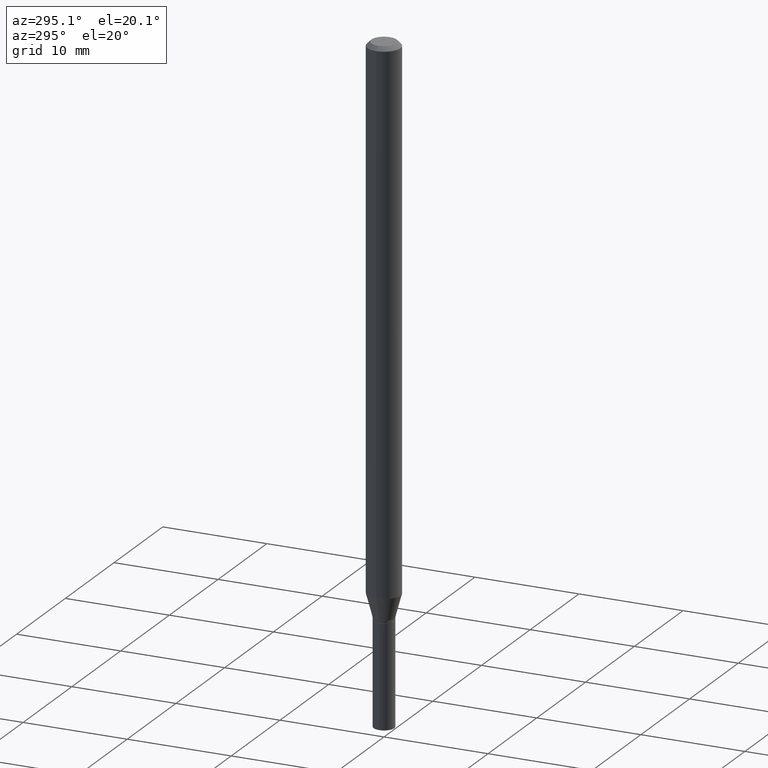
[diagram: clean part render]
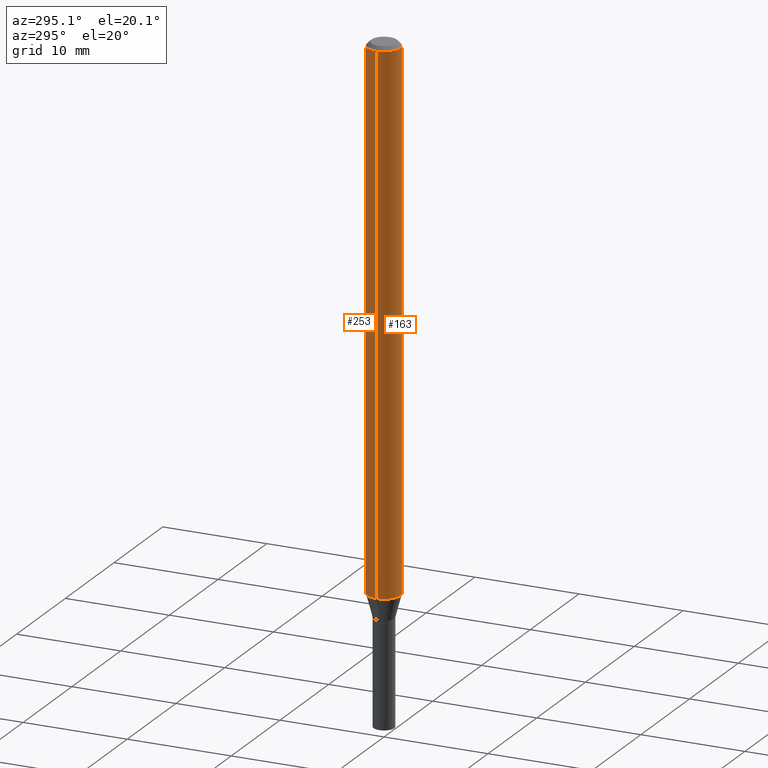
[diagram: same view with one multi-face feature highlighted, each face labeled with its STEP entity id]
A machine part, auxiliary view. The highlighted faces form ONE feature: a constant-radius fillet chain: 2 tangent blend faces with common blend radius 1.5875 mm. The faces share edges in the B-rep.
Their STEP definitions:
[1] entity #163 (Cylinder):
#4 = EDGE_CURVE ( 'NONE', #404, #311, #418, .T. ) ;
#12 = CYLINDRICAL_SURFACE ( 'NONE', #249, 0.06250000000000000000 ) ;
#24 = ORIENTED_EDGE ( 'NONE', *, *, #389, .F. ) ;
#30 = CARTESIAN_POINT ( 'NONE',  ( 0.000000000000000000, 0.000000000000000000, 0.000000000000000000 ) ) ;
#58 = DIRECTION ( 'NONE',  ( -2.445468806185136597E-29, 3.491481338843145583E-15, 1.000000000000000000 ) ) ;
#60 = VECTOR ( 'NONE', #445, 39.37007874015748143 ) ;
#86 = CARTESIAN_POINT ( 'NONE',  ( 4.921009067913102377E-29, -7.025896746439933678E-15, -2.012296806022130458 ) ) ;
#125 = CARTESIAN_POINT ( 'NONE',  ( -0.06250000000000000000, -3.095045273411227960E-15, -0.01499999999999999944 ) ) ;
#131 = DIRECTION ( 'NONE',  ( -2.445468806185136597E-29, 3.491481338843145583E-15, 1.000000000000000000 ) ) ;
#163 = ADVANCED_FACE ( 'NONE', ( #339 ), #12, .T. ) ;
#189 = ORIENTED_EDGE ( 'NONE', *, *, #371, .F. ) ;
#195 = VERTEX_POINT ( 'NONE', #362 ) ;
#201 = DIRECTION ( 'NONE',  ( -2.445468806185136877E-29, 3.491481338843145188E-15, 1.000000000000000000 ) ) ;
#205 = DIRECTION ( 'NONE',  ( 1.000000000000000000, -6.982962677686266711E-15, 0.000000000000000000 ) ) ;
#213 = CIRCLE ( 'NONE', #288, 0.06250000000000000000 ) ;
#237 = CARTESIAN_POINT ( 'NONE',  ( 0.06250000000000000000, -4.364351673553916694E-16, 3.047610484872459871E-30 ) ) ;
#242 = CARTESIAN_POINT ( 'NONE',  ( -0.06250000000000000000, 4.440892098500626162E-16, -3.074334431409316114E-30 ) ) ;
#243 = AXIS2_PLACEMENT_3D ( 'NONE', #86, #131, #419 ) ;
#249 = AXIS2_PLACEMENT_3D ( 'NONE', #30, #429, #315 ) ;
#288 = AXIS2_PLACEMENT_3D ( 'NONE', #448, #58, #205 ) ;
#307 = ORIENTED_EDGE ( 'NONE', *, *, #4, .T. ) ;
#309 = VERTEX_POINT ( 'NONE', #125 ) ;
#311 = VERTEX_POINT ( 'NONE', #412 ) ;
#313 = LINE ( 'NONE', #242, #60 ) ;
#315 = DIRECTION ( 'NONE',  ( 1.000000000000000000, -6.982962677686266711E-15, 4.876176775795935793E-29 ) ) ;
#332 = VECTOR ( 'NONE', #201, 39.37007874015748143 ) ;
#339 = FACE_OUTER_BOUND ( 'NONE', #439, .T. ) ;
#362 = CARTESIAN_POINT ( 'NONE',  ( -0.06250000000000000000, -6.581807536589871062E-15, -2.012296806022130458 ) ) ;
#371 = EDGE_CURVE ( 'NONE', #309, #311, #213, .T. ) ;
#389 = EDGE_CURVE ( 'NONE', #195, #309, #313, .T. ) ;
#394 = CIRCLE ( 'NONE', #243, 0.06250000000000000000 ) ;
#404 = VERTEX_POINT ( 'NONE', #420 ) ;
#412 = CARTESIAN_POINT ( 'NONE',  ( 0.06250000000000000000, -4.888073874380388472E-16, -0.01499999999999999944 ) ) ;
#418 = LINE ( 'NONE', #237, #332 ) ;
#419 = DIRECTION ( 'NONE',  ( 1.000000000000000000, -6.982962677686262766E-15, 0.000000000000000000 ) ) ;
#420 = CARTESIAN_POINT ( 'NONE',  ( 0.06250000000000000000, -7.462331913795325347E-15, -2.012296806022130458 ) ) ;
#429 = DIRECTION ( 'NONE',  ( -2.445468806185136597E-29, 3.491481338843145583E-15, 1.000000000000000000 ) ) ;
#439 = EDGE_LOOP ( 'NONE', ( #24, #447, #307, #189 ) ) ;
#445 = DIRECTION ( 'NONE',  ( -2.445468806185136877E-29, 3.491481338843145188E-15, 1.000000000000000000 ) ) ;
#447 = ORIENTED_EDGE ( 'NONE', *, *, #462, .T. ) ;
#448 = CARTESIAN_POINT ( 'NONE',  ( 3.668203209277705088E-31, -5.237222008264718399E-17, -0.01499999999999999944 ) ) ;
#462 = EDGE_CURVE ( 'NONE', #195, #404, #394, .T. ) ;
[2] entity #253 (Cylinder):
#4 = EDGE_CURVE ( 'NONE', #404, #311, #418, .T. ) ;
#10 = DIRECTION ( 'NONE',  ( 1.000000000000000000, -6.982962677686266711E-15, 4.876176775795935793E-29 ) ) ;
#22 = CIRCLE ( 'NONE', #413, 0.06250000000000000000 ) ;
#45 = AXIS2_PLACEMENT_3D ( 'NONE', #335, #300, #364 ) ;
#60 = VECTOR ( 'NONE', #445, 39.37007874015748143 ) ;
#73 = CARTESIAN_POINT ( 'NONE',  ( 3.668203209277705088E-31, -5.237222008264718399E-17, -0.01499999999999999944 ) ) ;
#96 = EDGE_CURVE ( 'NONE', #311, #309, #22, .T. ) ;
#125 = CARTESIAN_POINT ( 'NONE',  ( -0.06250000000000000000, -3.095045273411227960E-15, -0.01499999999999999944 ) ) ;
#151 = DIRECTION ( 'NONE',  ( -2.445468806185136597E-29, 3.491481338843145583E-15, 1.000000000000000000 ) ) ;
#170 = CIRCLE ( 'NONE', #45, 0.06250000000000000000 ) ;
#180 = AXIS2_PLACEMENT_3D ( 'NONE', #190, #151, #10 ) ;
#187 = ORIENTED_EDGE ( 'NONE', *, *, #4, .F. ) ;
#190 = CARTESIAN_POINT ( 'NONE',  ( 0.000000000000000000, 0.000000000000000000, 0.000000000000000000 ) ) ;
#195 = VERTEX_POINT ( 'NONE', #362 ) ;
#201 = DIRECTION ( 'NONE',  ( -2.445468806185136877E-29, 3.491481338843145188E-15, 1.000000000000000000 ) ) ;
#214 = DIRECTION ( 'NONE',  ( -2.445468806185136597E-29, 3.491481338843145583E-15, 1.000000000000000000 ) ) ;
#223 = EDGE_CURVE ( 'NONE', #404, #195, #170, .T. ) ;
#237 = CARTESIAN_POINT ( 'NONE',  ( 0.06250000000000000000, -4.364351673553916694E-16, 3.047610484872459871E-30 ) ) ;
#242 = CARTESIAN_POINT ( 'NONE',  ( -0.06250000000000000000, 4.440892098500626162E-16, -3.074334431409316114E-30 ) ) ;
#253 = ADVANCED_FACE ( 'NONE', ( #333 ), #368, .T. ) ;
#300 = DIRECTION ( 'NONE',  ( -2.445468806185136597E-29, 3.491481338843145583E-15, 1.000000000000000000 ) ) ;
#309 = VERTEX_POINT ( 'NONE', #125 ) ;
#311 = VERTEX_POINT ( 'NONE', #412 ) ;
#313 = LINE ( 'NONE', #242, #60 ) ;
#332 = VECTOR ( 'NONE', #201, 39.37007874015748143 ) ;
#333 = FACE_OUTER_BOUND ( 'NONE', #344, .T. ) ;
#335 = CARTESIAN_POINT ( 'NONE',  ( 4.921009067913102377E-29, -7.025896746439933678E-15, -2.012296806022130458 ) ) ;
#344 = EDGE_LOOP ( 'NONE', ( #359, #401, #373, #187 ) ) ;
#357 = DIRECTION ( 'NONE',  ( 1.000000000000000000, -6.982962677686266711E-15, 0.000000000000000000 ) ) ;
#359 = ORIENTED_EDGE ( 'NONE', *, *, #223, .T. ) ;
#362 = CARTESIAN_POINT ( 'NONE',  ( -0.06250000000000000000, -6.581807536589871062E-15, -2.012296806022130458 ) ) ;
#364 = DIRECTION ( 'NONE',  ( 1.000000000000000000, -6.982962677686262766E-15, 0.000000000000000000 ) ) ;
#368 = CYLINDRICAL_SURFACE ( 'NONE', #180, 0.06250000000000000000 ) ;
#373 = ORIENTED_EDGE ( 'NONE', *, *, #96, .F. ) ;
#389 = EDGE_CURVE ( 'NONE', #195, #309, #313, .T. ) ;
#401 = ORIENTED_EDGE ( 'NONE', *, *, #389, .T. ) ;
#404 = VERTEX_POINT ( 'NONE', #420 ) ;
#412 = CARTESIAN_POINT ( 'NONE',  ( 0.06250000000000000000, -4.888073874380388472E-16, -0.01499999999999999944 ) ) ;
#413 = AXIS2_PLACEMENT_3D ( 'NONE', #73, #214, #357 ) ;
#418 = LINE ( 'NONE', #237, #332 ) ;
#420 = CARTESIAN_POINT ( 'NONE',  ( 0.06250000000000000000, -7.462331913795325347E-15, -2.012296806022130458 ) ) ;
#445 = DIRECTION ( 'NONE',  ( -2.445468806185136877E-29, 3.491481338843145188E-15, 1.000000000000000000 ) ) ;